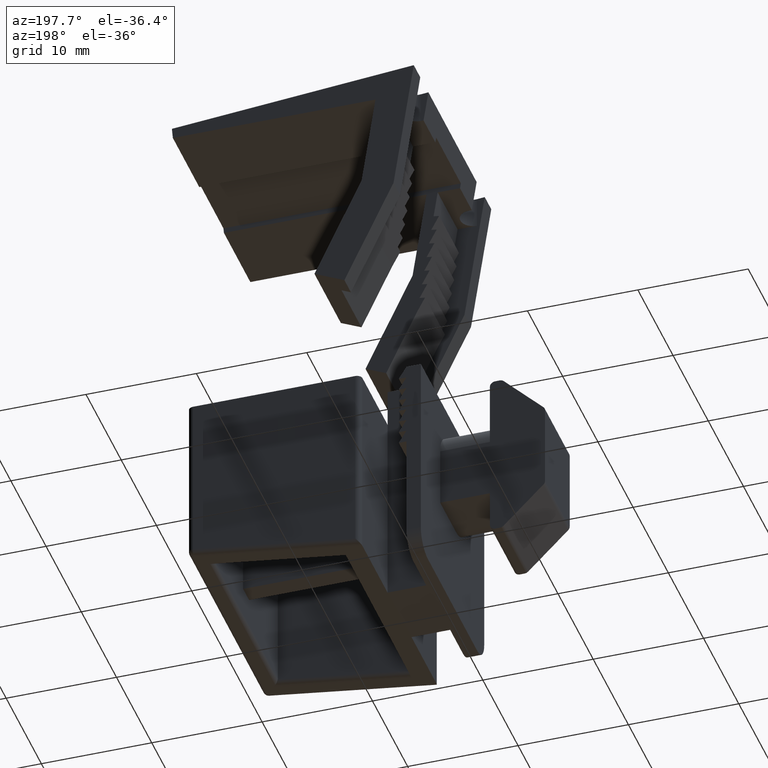
[diagram: clean part render]
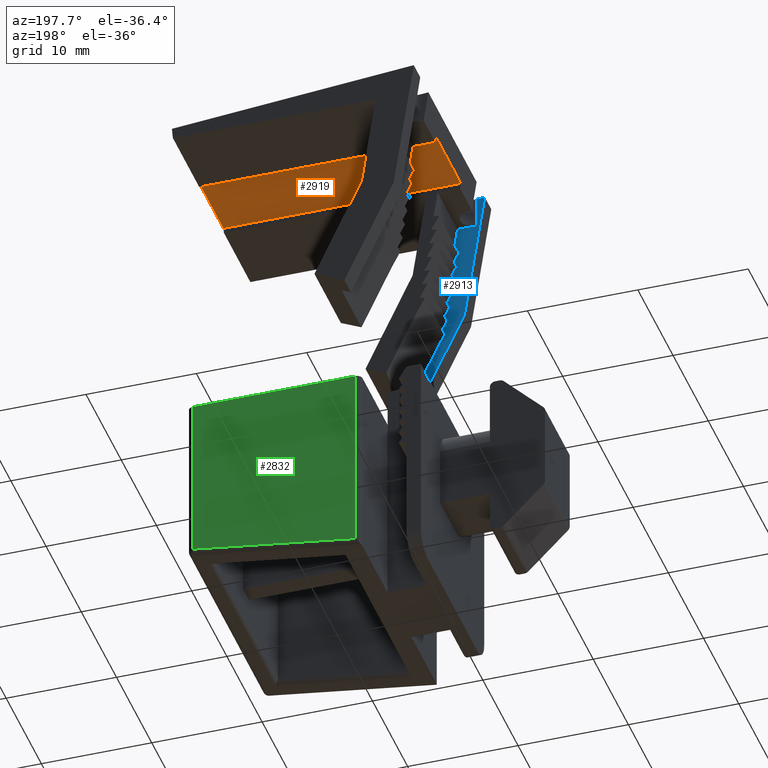
[diagram: same view with three faces highlighted in distinct colors, each labeled with its STEP entity id]
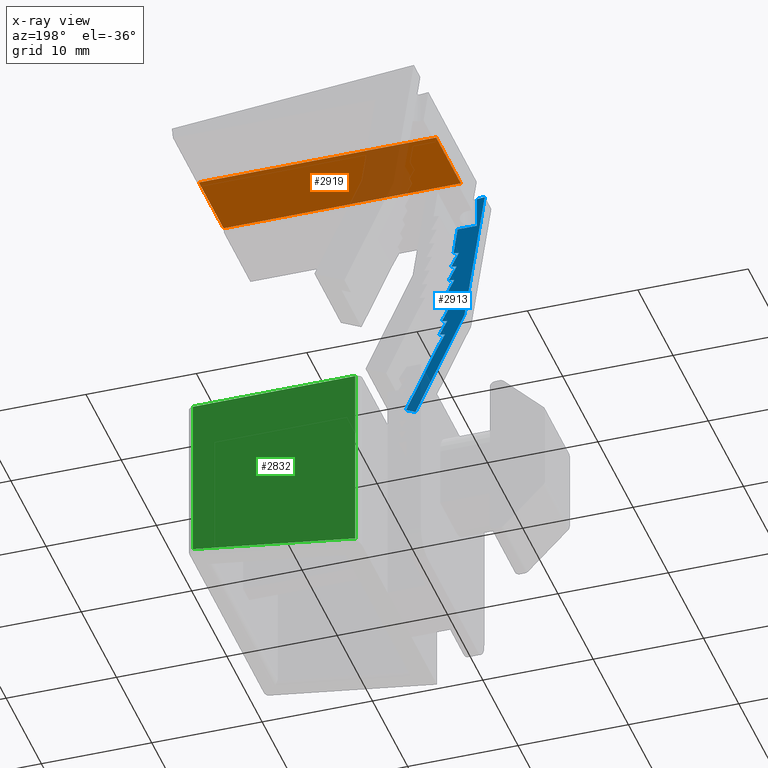
[diagram: x-ray of the same camera — body ghosted, the three highlighted faces saturated]
A machine part, auxiliary view with three faces highlighted in distinct colors.
The next image is the same camera in x-ray (body ghosted, the three faces saturated) — at least one of them is partly hidden behind the body in this view.
Their STEP definitions:

[orange] entity #2919 — the highlighted planar face has unit normal (0, 0, 1).
#143=PLANE('',#3177);
#292=FACE_OUTER_BOUND('',#443,.T.);
#443=EDGE_LOOP('',(#2687,#2688,#2689,#2690));
#722=LINE('',#4500,#1095);
#835=LINE('',#4725,#1208);
#848=LINE('',#4750,#1221);
#849=LINE('',#4752,#1222);
#1095=VECTOR('',#3698,10.);
#1208=VECTOR('',#3887,10.);
#1221=VECTOR('',#3904,10.);
#1222=VECTOR('',#3907,10.);
#1420=VERTEX_POINT('',#4497);
#1421=VERTEX_POINT('',#4499);
#1495=VERTEX_POINT('',#4724);
#1505=VERTEX_POINT('',#4748);
#1782=EDGE_CURVE('',#1420,#1421,#722,.T.);
#1895=EDGE_CURVE('',#1495,#1421,#835,.T.);
#1908=EDGE_CURVE('',#1420,#1505,#848,.T.);
#1909=EDGE_CURVE('',#1495,#1505,#849,.T.);
#2687=ORIENTED_EDGE('',*,*,#1782,.F.);
#2688=ORIENTED_EDGE('',*,*,#1908,.T.);
#2689=ORIENTED_EDGE('',*,*,#1909,.F.);
#2690=ORIENTED_EDGE('',*,*,#1895,.T.);
#2919=ADVANCED_FACE('',(#292),#143,.F.);
#3177=AXIS2_PLACEMENT_3D('',#4751,#3905,#3906);
#3698=DIRECTION('',(0.,0.,1.));
#3887=DIRECTION('',(-1.,6.45174717472811E-18,0.));
#3904=DIRECTION('',(1.,-6.45174717472811E-18,0.));
#3905=DIRECTION('center_axis',(6.45174717472812E-18,1.,0.));
#3906=DIRECTION('ref_axis',(-1.,6.45174717472811E-18,0.));
#3907=DIRECTION('',(0.,0.,-1.));
#4497=CARTESIAN_POINT('',(-3.10883856053662,0.500000000000002,-3.5));
#4499=CARTESIAN_POINT('',(-3.10883856053662,0.500000000000002,3.5));
#4500=CARTESIAN_POINT('',(-3.10883856053662,0.500000000000002,0.));
#4724=CARTESIAN_POINT('',(18.4012848711046,0.500000000000001,3.5));
#4725=CARTESIAN_POINT('',(18.4012848711046,0.500000000000001,3.5));
#4748=CARTESIAN_POINT('',(18.4012848711046,0.500000000000001,-3.5));
#4750=CARTESIAN_POINT('',(18.4012848711046,0.500000000000001,-3.5));
#4751=CARTESIAN_POINT('Origin',(18.4012848711046,0.500000000000001,0.));
#4752=CARTESIAN_POINT('',(18.4012848711046,0.500000000000001,0.));

[blue] entity #2913 — the highlighted planar face has unit normal (0, -1, 0).
#137=PLANE('',#3171);
#286=FACE_OUTER_BOUND('',#437,.T.);
#437=EDGE_LOOP('',(#2603,#2604,#2605,#2606,#2607,#2608,#2609,#2610,#2611,
#2612,#2613,#2614,#2615,#2616,#2617,#2618,#2619,#2620,#2621,#2622,#2623,
#2624));
#705=LINE('',#4460,#1078);
#714=LINE('',#4483,#1087);
#726=LINE('',#4509,#1099);
#730=LINE('',#4516,#1103);
#736=LINE('',#4530,#1109);
#740=LINE('',#4537,#1113);
#745=LINE('',#4548,#1118);
#749=LINE('',#4555,#1122);
#754=LINE('',#4566,#1127);
#758=LINE('',#4573,#1131);
#763=LINE('',#4584,#1136);
#767=LINE('',#4591,#1140);
#772=LINE('',#4602,#1145);
#776=LINE('',#4609,#1149);
#781=LINE('',#4620,#1154);
#785=LINE('',#4627,#1158);
#790=LINE('',#4638,#1163);
#793=LINE('',#4642,#1166);
#826=LINE('',#4708,#1199);
#827=LINE('',#4710,#1200);
#828=LINE('',#4711,#1201);
#829=LINE('',#4712,#1202);
#1078=VECTOR('',#3667,10.);
#1087=VECTOR('',#3686,10.);
#1099=VECTOR('',#3704,10.);
#1103=VECTOR('',#3710,10.);
#1109=VECTOR('',#3720,10.);
#1113=VECTOR('',#3726,10.);
#1118=VECTOR('',#3735,10.);
#1122=VECTOR('',#3741,10.);
#1127=VECTOR('',#3750,10.);
#1131=VECTOR('',#3756,10.);
#1136=VECTOR('',#3765,10.);
#1140=VECTOR('',#3771,10.);
#1145=VECTOR('',#3780,10.);
#1149=VECTOR('',#3786,10.);
#1154=VECTOR('',#3795,10.);
#1158=VECTOR('',#3801,10.);
#1163=VECTOR('',#3810,10.);
#1166=VECTOR('',#3815,10.);
#1199=VECTOR('',#3872,10.);
#1200=VECTOR('',#3873,10.);
#1201=VECTOR('',#3874,10.);
#1202=VECTOR('',#3875,10.);
#1404=VERTEX_POINT('',#4456);
#1405=VERTEX_POINT('',#4458);
#1414=VERTEX_POINT('',#4481);
#1424=VERTEX_POINT('',#4506);
#1425=VERTEX_POINT('',#4508);
#1427=VERTEX_POINT('',#4514);
#1433=VERTEX_POINT('',#4529);
#1435=VERTEX_POINT('',#4535);
#1439=VERTEX_POINT('',#4547);
#1441=VERTEX_POINT('',#4553);
#1445=VERTEX_POINT('',#4565);
#1447=VERTEX_POINT('',#4571);
#1451=VERTEX_POINT('',#4583);
#1453=VERTEX_POINT('',#4589);
#1457=VERTEX_POINT('',#4601);
#1459=VERTEX_POINT('',#4607);
#1463=VERTEX_POINT('',#4619);
#1465=VERTEX_POINT('',#4625);
#1469=VERTEX_POINT('',#4637);
#1489=VERTEX_POINT('',#4706);
#1490=VERTEX_POINT('',#4707);
#1491=VERTEX_POINT('',#4709);
#1763=EDGE_CURVE('',#1405,#1404,#705,.T.);
#1774=EDGE_CURVE('',#1414,#1405,#714,.T.);
#1786=EDGE_CURVE('',#1424,#1425,#726,.T.);
#1790=EDGE_CURVE('',#1427,#1424,#730,.T.);
#1796=EDGE_CURVE('',#1425,#1433,#736,.T.);
#1800=EDGE_CURVE('',#1435,#1427,#740,.T.);
#1805=EDGE_CURVE('',#1433,#1439,#745,.T.);
#1809=EDGE_CURVE('',#1441,#1435,#749,.T.);
#1814=EDGE_CURVE('',#1439,#1445,#754,.T.);
#1818=EDGE_CURVE('',#1447,#1441,#758,.T.);
#1823=EDGE_CURVE('',#1445,#1451,#763,.T.);
#1827=EDGE_CURVE('',#1453,#1447,#767,.T.);
#1832=EDGE_CURVE('',#1451,#1457,#772,.T.);
#1836=EDGE_CURVE('',#1459,#1453,#776,.T.);
#1841=EDGE_CURVE('',#1457,#1463,#781,.T.);
#1845=EDGE_CURVE('',#1465,#1459,#785,.T.);
#1850=EDGE_CURVE('',#1463,#1469,#790,.T.);
#1853=EDGE_CURVE('',#1469,#1414,#793,.T.);
#1886=EDGE_CURVE('',#1489,#1490,#826,.T.);
#1887=EDGE_CURVE('',#1491,#1489,#827,.T.);
#1888=EDGE_CURVE('',#1404,#1491,#828,.T.);
#1889=EDGE_CURVE('',#1490,#1465,#829,.T.);
#2603=ORIENTED_EDGE('',*,*,#1886,.F.);
#2604=ORIENTED_EDGE('',*,*,#1887,.F.);
#2605=ORIENTED_EDGE('',*,*,#1888,.F.);
#2606=ORIENTED_EDGE('',*,*,#1763,.F.);
#2607=ORIENTED_EDGE('',*,*,#1774,.F.);
#2608=ORIENTED_EDGE('',*,*,#1853,.F.);
#2609=ORIENTED_EDGE('',*,*,#1850,.F.);
#2610=ORIENTED_EDGE('',*,*,#1841,.F.);
#2611=ORIENTED_EDGE('',*,*,#1832,.F.);
#2612=ORIENTED_EDGE('',*,*,#1823,.F.);
#2613=ORIENTED_EDGE('',*,*,#1814,.F.);
#2614=ORIENTED_EDGE('',*,*,#1805,.F.);
#2615=ORIENTED_EDGE('',*,*,#1796,.F.);
#2616=ORIENTED_EDGE('',*,*,#1786,.F.);
#2617=ORIENTED_EDGE('',*,*,#1790,.F.);
#2618=ORIENTED_EDGE('',*,*,#1800,.F.);
#2619=ORIENTED_EDGE('',*,*,#1809,.F.);
#2620=ORIENTED_EDGE('',*,*,#1818,.F.);
#2621=ORIENTED_EDGE('',*,*,#1827,.F.);
#2622=ORIENTED_EDGE('',*,*,#1836,.F.);
#2623=ORIENTED_EDGE('',*,*,#1845,.F.);
#2624=ORIENTED_EDGE('',*,*,#1889,.F.);
#2913=ADVANCED_FACE('',(#286),#137,.F.);
#3171=AXIS2_PLACEMENT_3D('',#4705,#3870,#3871);
#3667=DIRECTION('',(0.,1.,0.));
#3686=DIRECTION('',(-1.,0.,0.));
#3704=DIRECTION('',(-0.466960664478303,0.884278088516266,0.));
#3710=DIRECTION('',(0.988893917039173,0.148623083142969,0.));
#3720=DIRECTION('',(0.988893917039173,0.148623083142967,0.));
#3726=DIRECTION('',(-0.466960664478303,0.884278088516266,0.));
#3735=DIRECTION('',(-0.466960664478303,0.884278088516266,0.));
#3741=DIRECTION('',(0.988893917039173,0.148623083142967,0.));
#3750=DIRECTION('',(0.988893917039173,0.148623083142969,0.));
#3756=DIRECTION('',(-0.466960664478303,0.884278088516266,0.));
#3765=DIRECTION('',(-0.466960664478303,0.884278088516266,0.));
#3771=DIRECTION('',(0.988893917039173,0.148623083142967,0.));
#3780=DIRECTION('',(0.988893917039173,0.148623083142968,0.));
#3786=DIRECTION('',(-0.466960664478303,0.884278088516266,0.));
#3795=DIRECTION('',(-0.466960664478303,0.884278088516266,0.));
#3801=DIRECTION('',(-0.426511671735571,0.904482058347941,0.));
#3810=DIRECTION('',(0.988893917039173,0.148623083142967,0.));
#3815=DIRECTION('',(-0.148623083142968,0.988893917039173,0.));
#3870=DIRECTION('center_axis',(0.,0.,1.));
#3871=DIRECTION('ref_axis',(1.,0.,0.));
#3872=DIRECTION('',(0.426511671735571,-0.904482058347941,0.));
#3873=DIRECTION('',(0.148623083142968,-0.988893917039173,0.));
#3874=DIRECTION('',(-0.996194698091746,0.0871557427476581,0.));
#3875=DIRECTION('',(0.904482058347941,0.426511671735571,0.));
#4456=CARTESIAN_POINT('',(-2.77158707592907,2.85237897407208,9.15));
#4458=CARTESIAN_POINT('',(-2.77158707592907,0.,9.15));
#4460=CARTESIAN_POINT('',(-2.77158707592907,0.,9.15));
#4481=CARTESIAN_POINT('',(-1.01123081330511,0.,9.15));
#4483=CARTESIAN_POINT('',(-1.01123081330511,0.,9.15));
#4506=CARTESIAN_POINT('',(0.20960165536927,-8.12305717567892,9.15));
#4508=CARTESIAN_POINT('',(-0.497163993354557,-6.78466312148015,9.15));
#4509=CARTESIAN_POINT('',(0.20960165536927,-8.12305717567892,9.15));
#4514=CARTESIAN_POINT('',(-0.284845303150317,-8.1973687172504,9.15));
#4516=CARTESIAN_POINT('',(-0.284845303150317,-8.1973687172504,9.15));
#4529=CARTESIAN_POINT('',(-0.00271703483497032,-6.71035157990867,9.15));
#4530=CARTESIAN_POINT('',(-0.497163993354557,-6.78466312148015,9.15));
#4535=CARTESIAN_POINT('',(0.42192034557351,-9.53576277144917,9.15));
#4537=CARTESIAN_POINT('',(0.42192034557351,-9.53576277144917,9.15));
#4547=CARTESIAN_POINT('',(-0.709482683558797,-5.37195752570991,9.15));
#4548=CARTESIAN_POINT('',(-0.00271703483497032,-6.71035157990867,9.15));
#4553=CARTESIAN_POINT('',(-0.0725266129460767,-9.61007431302065,9.15));
#4555=CARTESIAN_POINT('',(-0.0725266129460765,-9.61007431302065,9.15));
#4565=CARTESIAN_POINT('',(-0.21503572503921,-5.29764598413843,9.15));
#4566=CARTESIAN_POINT('',(-0.709482683558797,-5.37195752570991,9.15));
#4571=CARTESIAN_POINT('',(0.63423903577775,-10.9484683672194,9.15));
#4573=CARTESIAN_POINT('',(0.63423903577775,-10.9484683672194,9.15));
#4583=CARTESIAN_POINT('',(-0.921801373763037,-3.95925192993966,9.15));
#4584=CARTESIAN_POINT('',(-0.21503572503921,-5.29764598413843,9.15));
#4589=CARTESIAN_POINT('',(0.139792077258164,-11.0227799087909,9.15));
#4591=CARTESIAN_POINT('',(0.139792077258164,-11.0227799087909,9.15));
#4601=CARTESIAN_POINT('',(-0.42735441524345,-3.88494038836818,9.15));
#4602=CARTESIAN_POINT('',(-0.921801373763037,-3.95925192993966,9.15));
#4607=CARTESIAN_POINT('',(0.84655772598199,-12.3611739629897,9.15));
#4609=CARTESIAN_POINT('',(0.84655772598199,-12.3611739629897,9.15));
#4619=CARTESIAN_POINT('',(-1.13412006396728,-2.54654633416942,9.15));
#4620=CARTESIAN_POINT('',(-0.42735441524345,-3.88494038836818,9.15));
#4625=CARTESIAN_POINT('',(3.66153331092152,-18.3307524762919,9.15));
#4627=CARTESIAN_POINT('',(3.66153331092152,-18.3307524762919,9.15));
#4637=CARTESIAN_POINT('',(-0.639673105447691,-2.47223479259793,9.15));
#4638=CARTESIAN_POINT('',(-1.13412006396728,-2.54654633416942,9.15));
#4642=CARTESIAN_POINT('',(-0.639673105447691,-2.47223479259793,9.15));
#4705=CARTESIAN_POINT('Origin',(-0.1399680094277,-9.00658904023213,9.15));
#4706=CARTESIAN_POINT('',(-1.63794583352009,-9.28688397255627,9.15));
#4707=CARTESIAN_POINT('',(2.81496674902711,-18.7299538935191,9.15));
#4708=CARTESIAN_POINT('',(-1.55576059817096,-9.46117010763882,9.15));
#4709=CARTESIAN_POINT('',(-3.47158707592907,2.91362103854022,9.15));
#4710=CARTESIAN_POINT('',(-3.25747604600369,1.48898974583235,9.15));
#4711=CARTESIAN_POINT('',(7.61304084901877,1.9438417557044,9.15));
#4712=CARTESIAN_POINT('',(3.48177042572418,-18.4155202922745,9.15));

[green] entity #2832 — the highlighted planar face has unit normal (-0, 1, 0).
#58=PLANE('',#3085);
#205=FACE_OUTER_BOUND('',#355,.T.);
#355=EDGE_LOOP('',(#2177,#2178,#2179,#2180));
#513=LINE('',#4018,#886);
#514=LINE('',#4021,#887);
#516=LINE('',#4027,#889);
#600=LINE('',#4243,#973);
#886=VECTOR('',#3253,10.);
#887=VECTOR('',#3258,10.);
#889=VECTOR('',#3264,10.);
#973=VECTOR('',#3474,10.);
#1263=VERTEX_POINT('',#4006);
#1265=VERTEX_POINT('',#4015);
#1266=VERTEX_POINT('',#4017);
#1267=VERTEX_POINT('',#4023);
#1544=EDGE_CURVE('',#1265,#1266,#513,.T.);
#1546=EDGE_CURVE('',#1266,#1263,#514,.T.);
#1549=EDGE_CURVE('',#1263,#1267,#516,.T.);
#1656=EDGE_CURVE('',#1265,#1267,#600,.T.);
#2177=ORIENTED_EDGE('',*,*,#1544,.F.);
#2178=ORIENTED_EDGE('',*,*,#1656,.T.);
#2179=ORIENTED_EDGE('',*,*,#1549,.F.);
#2180=ORIENTED_EDGE('',*,*,#1546,.F.);
#2832=ADVANCED_FACE('',(#205),#58,.T.);
#3085=AXIS2_PLACEMENT_3D('',#4242,#3472,#3473);
#3253=DIRECTION('',(0.,0.,1.));
#3258=DIRECTION('',(0.989439030001383,0.,-0.144949666815489));
#3264=DIRECTION('',(0.,0.,-1.));
#3472=DIRECTION('center_axis',(0.,-1.,0.));
#3473=DIRECTION('ref_axis',(0.,0.,-1.));
#3474=DIRECTION('',(1.,0.,3.53574211664063E-17));
#4006=CARTESIAN_POINT('',(20.,-11.,16.76791156036));
#4015=CARTESIAN_POINT('',(5.3,-11.,1.5));
#4017=CARTESIAN_POINT('',(5.3,-11.,18.9214147450733));
#4018=CARTESIAN_POINT('',(5.3,-11.,5.73344712558717));
#4021=CARTESIAN_POINT('',(9.11826371996784,-11.,18.3620512701736));
#4023=CARTESIAN_POINT('',(20.,-11.,1.5));
#4027=CARTESIAN_POINT('',(20.,-11.,13.5834471255872));
#4242=CARTESIAN_POINT('Origin',(12.3733695377002,-11.,9.96689425117433));
#4243=CARTESIAN_POINT('',(20.5,-11.,1.5));